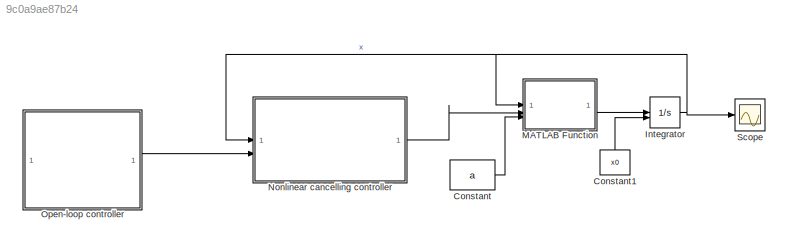
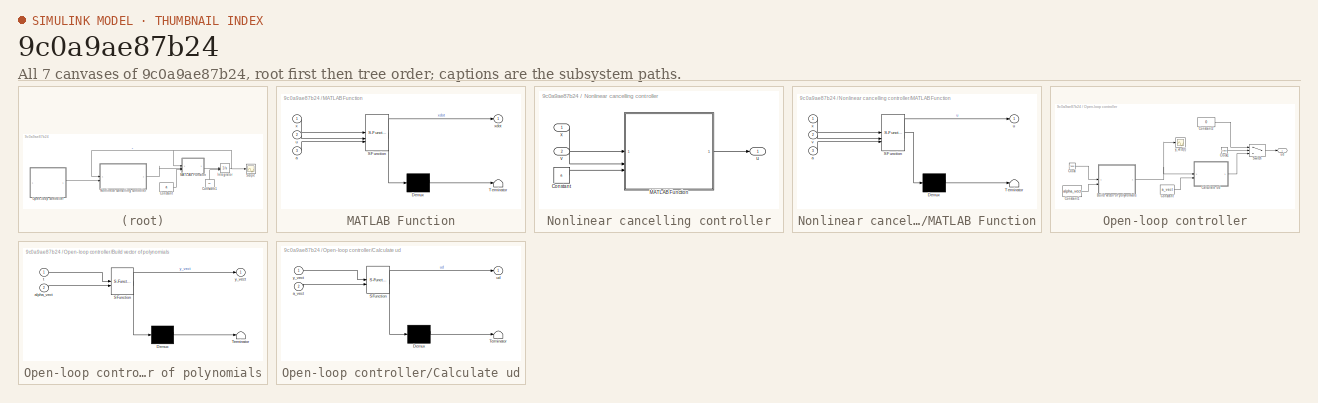
[diagram: thumbnail index - all 7 canvases of the model, root first then tree order]
MODEL slx_9c0a9ae87b24
KIND model
CONFIG AbsTol = auto
CONFIG EnableMultiTasking = off
CONFIG FixedStep = 0.001
CONFIG MaxStep = auto
CONFIG MinStep = auto
CONFIG RelTol = 1e-3
CONFIG SampleTimeConstraint = Unconstrained
CONFIG SolverName = FixedStepAuto
CONFIG StartTime = 0.0
CONFIG StopTime = 15.0
BLOCK [Constant] Constant
  Value = a
BLOCK [Constant] Constant1
  NameLocation = right
  Value = x0
BLOCK [Integrator] Integrator
  InitialConditionSource = external
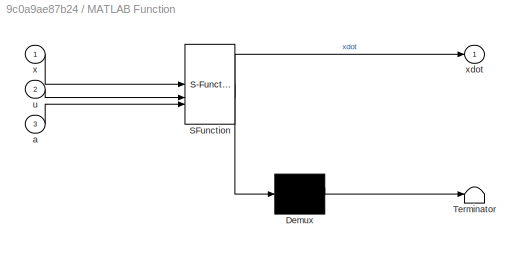
BLOCK [SubSystem] MATLAB Function
  ErrorFcn = Stateflow.Translate.translate
  PermitHierarchicalResolution = ExplicitOnly
  SFBlockType = MATLAB Function
  TreatAsAtomicUnit = on
BLOCK [Demux] MATLAB Function/ Demux 
  Outputs = 1
BLOCK [S-Function] MATLAB Function/ SFunction 
  EnableBusSupport = on
  FunctionName = sf_sfun
  PortCounts = [3 2]
  SFcnIsStateOwnerBlock = off
  SFunctionDeploymentMode = off
  Tag = Stateflow S-Function 2
BLOCK [Terminator] MATLAB Function/ Terminator 
BLOCK [Inport] MATLAB Function/a
  Port = 3
BLOCK [Inport] MATLAB Function/u
  Port = 2
BLOCK [Inport] MATLAB Function/x
BLOCK [Outport] MATLAB Function/xdot
BLOCK [SubSystem] Nonlinear cancelling controller
BLOCK [Constant] Nonlinear cancelling controller/Constant
  Value = a
  VectorParams1D = off
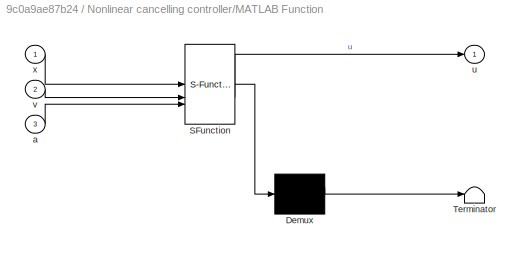
BLOCK [SubSystem] Nonlinear cancelling controller/MATLAB Function
  ErrorFcn = Stateflow.Translate.translate
  PermitHierarchicalResolution = ExplicitOnly
  SFBlockType = MATLAB Function
  TreatAsAtomicUnit = on
BLOCK [Demux] Nonlinear cancelling controller/MATLAB Function/ Demux 
  Outputs = 1
BLOCK [S-Function] Nonlinear cancelling controller/MATLAB Function/ SFunction 
  EnableBusSupport = on
  FunctionName = sf_sfun
  PortCounts = [3 2]
  SFcnIsStateOwnerBlock = off
  SFunctionDeploymentMode = off
  Tag = Stateflow S-Function 4
BLOCK [Terminator] Nonlinear cancelling controller/MATLAB Function/ Terminator 
BLOCK [Inport] Nonlinear cancelling controller/MATLAB Function/a
  Port = 3
BLOCK [Outport] Nonlinear cancelling controller/MATLAB Function/u
BLOCK [Inport] Nonlinear cancelling controller/MATLAB Function/v
  Port = 2
BLOCK [Inport] Nonlinear cancelling controller/MATLAB Function/x
BLOCK [Outport] Nonlinear cancelling controller/u
BLOCK [Inport] Nonlinear cancelling controller/v
  Port = 2
BLOCK [Inport] Nonlinear cancelling controller/x
BLOCK [SubSystem] Open-loop controller
BLOCK [SubSystem] Open-loop controller/Build vector of polynomials
  ErrorFcn = Stateflow.Translate.translate
  PermitHierarchicalResolution = ExplicitOnly
  SFBlockType = MATLAB Function
  TreatAsAtomicUnit = on
BLOCK [Demux] Open-loop controller/Build vector of polynomials/ Demux 
  Outputs = 1
BLOCK [S-Function] Open-loop controller/Build vector of polynomials/ SFunction 
  EnableBusSupport = on
  FunctionName = sf_sfun
  PortCounts = [2 2]
  SFcnIsStateOwnerBlock = off
  SFunctionDeploymentMode = off
  Tag = Stateflow S-Function 1
BLOCK [Terminator] Open-loop controller/Build vector of polynomials/ Terminator 
BLOCK [Inport] Open-loop controller/Build vector of polynomials/alpha_vect
  Port = 2
BLOCK [Inport] Open-loop controller/Build vector of polynomials/t
BLOCK [Outport] Open-loop controller/Build vector of polynomials/y_vect
BLOCK [SubSystem] Open-loop controller/Calculate ud
  ErrorFcn = Stateflow.Translate.translate
  PermitHierarchicalResolution = ExplicitOnly
  SFBlockType = MATLAB Function
  TreatAsAtomicUnit = on
BLOCK [Demux] Open-loop controller/Calculate ud/ Demux 
  Outputs = 1
BLOCK [S-Function] Open-loop controller/Calculate ud/ SFunction 
  EnableBusSupport = on
  FunctionName = sf_sfun
  PortCounts = [2 2]
  SFcnIsStateOwnerBlock = off
  SFunctionDeploymentMode = off
  Tag = Stateflow S-Function 3
BLOCK [Terminator] Open-loop controller/Calculate ud/ Terminator 
BLOCK [Inport] Open-loop controller/Calculate ud/a_vect
  Port = 2
BLOCK [Outport] Open-loop controller/Calculate ud/ud
BLOCK [Inport] Open-loop controller/Calculate ud/y_vect
BLOCK [Clock] Open-loop controller/Clock
BLOCK [Clock] Open-loop controller/Clock1
BLOCK [Constant] Open-loop controller/Constant
  Value = a_vect
  VectorParams1D = off
BLOCK [Constant] Open-loop controller/Constant1
  Value = alpha_vect
  VectorParams1D = off
BLOCK [Constant] Open-loop controller/Constant2
  Value = 0
BLOCK [Switch] Open-loop controller/Switch
  Criteria = u2 > Threshold
  InputSameDT = off
  SaturateOnIntegerOverflow = off
  Threshold = 10
BLOCK [Outport] Open-loop controller/ud
BLOCK [Scope] Open-loop controller/y_vect(t)
  Floating = off
  NumInputPorts = 1
  ScopeSpecificationString = Simulink.scopes.TimeScopeBlockCfg('CurrentConfiguration', extmgr.ConfigurationSet(extmgr.Configuration('Core','General UI',true),extmgr.Configuration('Core','Source UI',true),extmgr.Configuration('Sources','WiredSimulink',true,'DataLoggingVariableName','ScopeData5'),extmgr.Configuration('Visuals','Time Domain',true,'SerializedDisplays',{struct('MinYLimReal','-88.125','MaxYLimReal','343.125','YLabe...<+1474ch>
BLOCK [Scope] Scope
  Floating = off
  NumInputPorts = 1
  ScopeSpecificationString = Simulink.scopes.TimeScopeBlockCfg('CurrentConfiguration', extmgr.ConfigurationSet(extmgr.Configuration('Core','General UI',true),extmgr.Configuration('Core','Source UI',true),extmgr.Configuration('Sources','WiredSimulink',true),extmgr.Configuration('Visuals','Time Domain',true,'SerializedDisplays',{struct('MinYLimReal','-27.0417','MaxYLimReal','263.37527','YLabelReal','','MinYLimMag','0.00000','Ma...<+1406ch>
LINE Constant1:1 -> Integrator:2
LINE Constant:1 -> MATLAB Function:3
NET Integrator:1 -> MATLAB Function:1, Nonlinear cancelling controller:1, Scope:1
LINE MATLAB Function:1 -> Integrator:1
LINE Nonlinear cancelling controller/Constant:1 -> Nonlinear cancelling controller/MATLAB Function:3
LINE Nonlinear cancelling controller/MATLAB Function:1 -> Nonlinear cancelling controller/u:1
LINE Nonlinear cancelling controller/v:1 -> Nonlinear cancelling controller/MATLAB Function:2
LINE Nonlinear cancelling controller/x:1 -> Nonlinear cancelling controller/MATLAB Function:1
LINE Nonlinear cancelling controller:1 -> MATLAB Function:2
NET Open-loop controller/Build vector of polynomials:1 -> Open-loop controller/Calculate ud:1, Open-loop controller/y_vect(t):1
LINE Open-loop controller/Calculate ud:1 -> Open-loop controller/Switch:3
LINE Open-loop controller/Clock1:1 -> Open-loop controller/Switch:2
LINE Open-loop controller/Clock:1 -> Open-loop controller/Build vector of polynomials:1
LINE Open-loop controller/Constant1:1 -> Open-loop controller/Build vector of polynomials:2
LINE Open-loop controller/Constant2:1 -> Open-loop controller/Switch:1
LINE Open-loop controller/Constant:1 -> Open-loop controller/Calculate ud:2
LINE Open-loop controller/Switch:1 -> Open-loop controller/ud:1
LINE Open-loop controller:1 -> Nonlinear cancelling controller:2
note: NET lines group one-source signal fan-out (src -> all destinations, sorted); 1:1 wires keep LINE
CHART Open-loop controller/Build vector of polynomials states=1 transitions=1
  STATE_LABEL 'eML_blk_kernel()'
  STATE_LABEL 'SCRIPT:\nfunction y_vect = fcn(t,alpha_vect)\n\nif length(alpha_vect) == 4\n    t_vect0 = [ 1 ; t ; t^2 ; t^3 ]; % vector of t values\n    t_vect1 = [ 0 ; 1 ; 2*t ; 3*t^2 ]; % derivative of t_vect0\n    t_vect2 = [ 0 ; 0 ; 2 ; 2*3*t ]; % derivative of t_vect1\nelseif length(alpha_vect) == 6\n    t_vect0 = [ 1 ; t ; t^2 ; t^3 ; t^4 ; t^5 ]; % vector of t values\n    t_vect1 = [ 0 ; 1 ; 2*t ; 3*t^2 ; 4*t^3 ;...<+579ch>'
CHART MATLAB Function states=1 transitions=1
  STATE_LABEL 'eML_blk_kernel()'
  STATE_LABEL 'SCRIPT:\nfunction xdot = fcn(x,u, a)\n\nq1 = a(1);\nq2 = a(2);\nq3 = a(3);\nJ = a(4);\n\n\nxdot = [-q1 * x(2) * x(1) + u; \n        q2/J * x(1) - q3/J * x(2)];\n'
CHART Open-loop controller/Calculate ud states=1 transitions=1
  STATE_LABEL 'eML_blk_kernel()'
  STATE_LABEL "SCRIPT:\nfunction ud = fcn(y_vect,a_vect)\n\na_vect = [ a_vect ; 1 ];\n\n\n% computation open-loop input\nud = a_vect' * y_vect;\n"
CHART Nonlinear cancelling controller/MATLAB Function states=1 transitions=1
  STATE_LABEL 'eML_blk_kernel()'
  STATE_LABEL 'SCRIPT:\nfunction u = c_lin(x,v,a)\n\n% a is the vector of constant parameters\nq1 = a(1);\n\n% cancelling controller\nu = q1*x(1)*x(2) + v;\n\n\n'
CHART  states=0 transitions=0
CHART  states=0 transitions=0
CHART  states=0 transitions=0
CHART  states=0 transitions=0
